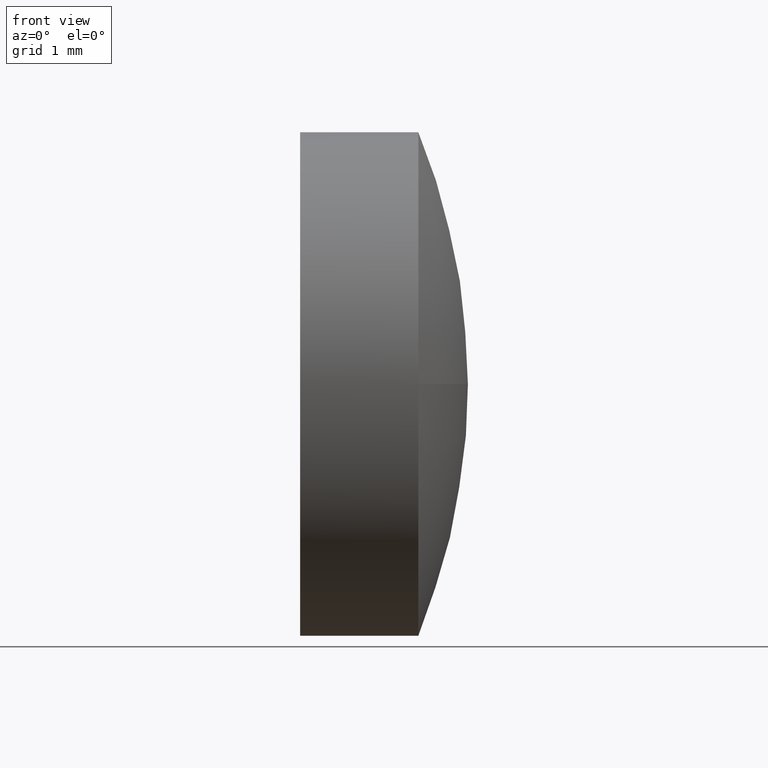
[diagram: clean part render]
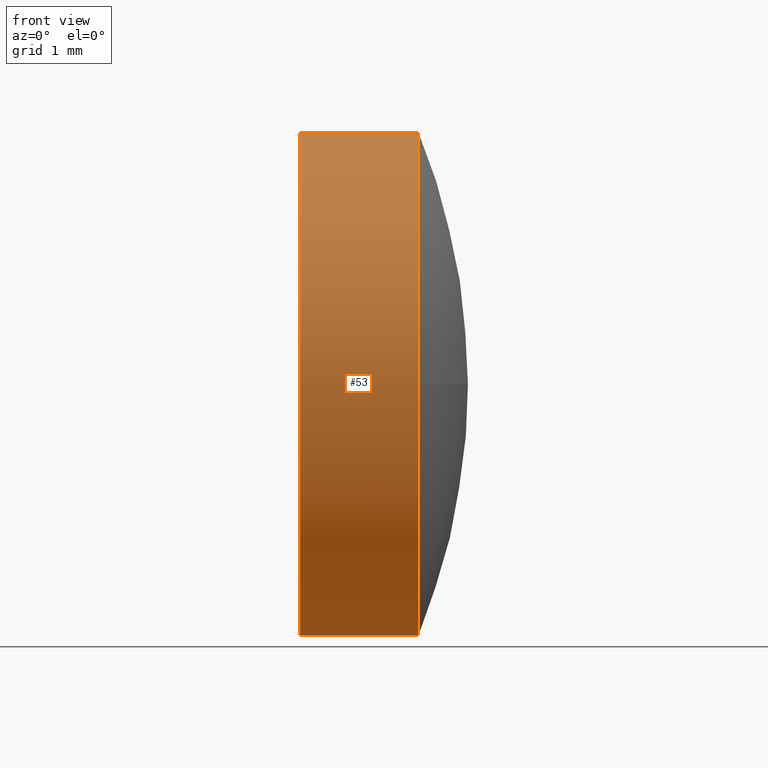
[diagram: same view with one face highlighted and labeled with its STEP entity id]
A machine part, front view. The second image highlights one B-rep face of the part: STEP entity #53.
In plain terms, the highlighted cylindrical surface (partial cylindrical patch) has radius 3.15 mm, axis along (-1, -0, -0).
Its self-contained STEP definition (entity closure, byte-faithful):
#1 = VECTOR ( 'NONE', #74, 1000.000000000000000 ) ;
#4 = CARTESIAN_POINT ( 'NONE',  ( 444.5033712523841700, -98.43972951502320300, 3.150000000000013700 ) ) ;
#16 = VECTOR ( 'NONE', #158, 1000.000000000000000 ) ;
#17 = CARTESIAN_POINT ( 'NONE',  ( 443.0233712523840900, -98.43972951502320300, 0.0000000000000000000 ) ) ;
#21 = CARTESIAN_POINT ( 'NONE',  ( 442.2176608398421500, -98.43972951502320300, 3.150000000000013700 ) ) ;
#24 = CIRCLE ( 'NONE', #41, 3.150000000000013700 ) ;
#27 = EDGE_CURVE ( 'NONE', #75, #38, #24, .T. ) ;
#29 = DIRECTION ( 'NONE',  ( -1.000000000000000000, -0.0000000000000000000, -0.0000000000000000000 ) ) ;
#30 = EDGE_CURVE ( 'NONE', #136, #114, #42, .T. ) ;
#35 = EDGE_LOOP ( 'NONE', ( #145, #117, #111, #157, #72 ) ) ;
#38 = VERTEX_POINT ( 'NONE', #83 ) ;
#40 = CARTESIAN_POINT ( 'NONE',  ( 442.2176608398421500, -98.43972951502320300, 0.0000000000000000000 ) ) ;
#41 = AXIS2_PLACEMENT_3D ( 'NONE', #17, #173, #186 ) ;
#42 = CIRCLE ( 'NONE', #115, 3.150000000000013700 ) ;
#43 = CARTESIAN_POINT ( 'NONE',  ( 443.0233712523840900, -98.43972951502320300, -3.150000000000013700 ) ) ;
#45 = CARTESIAN_POINT ( 'NONE',  ( 444.5033712523841700, -98.43972951502320300, 0.0000000000000000000 ) ) ;
#46 = CARTESIAN_POINT ( 'NONE',  ( 444.5033712523841700, -101.5897295150232700, -3.857637417314167600E-016 ) ) ;
#47 = CARTESIAN_POINT ( 'NONE',  ( 444.5033712523841700, -98.43972951502320300, -3.150000000000013700 ) ) ;
#50 = CIRCLE ( 'NONE', #80, 3.150000000000013700 ) ;
#53 = ADVANCED_FACE ( 'NONE', ( #56 ), #131, .T. ) ;
#56 = FACE_OUTER_BOUND ( 'NONE', #35, .T. ) ;
#59 = DIRECTION ( 'NONE',  ( 0.0000000000000000000, 0.0000000000000000000, 1.000000000000000000 ) ) ;
#64 = LINE ( 'NONE', #21, #16 ) ;
#70 = EDGE_CURVE ( 'NONE', #109, #136, #50, .T. ) ;
#72 = ORIENTED_EDGE ( 'NONE', *, *, #27, .F. ) ;
#74 = DIRECTION ( 'NONE',  ( -1.000000000000000000, -0.0000000000000000000, -0.0000000000000000000 ) ) ;
#75 = VERTEX_POINT ( 'NONE', #43 ) ;
#80 = AXIS2_PLACEMENT_3D ( 'NONE', #167, #94, #59 ) ;
#83 = CARTESIAN_POINT ( 'NONE',  ( 443.0233712523840900, -98.43972951502320300, 3.150000000000013700 ) ) ;
#94 = DIRECTION ( 'NONE',  ( -1.000000000000000000, -0.0000000000000000000, -0.0000000000000000000 ) ) ;
#95 = DIRECTION ( 'NONE',  ( -1.000000000000000000, -0.0000000000000000000, -0.0000000000000000000 ) ) ;
#101 = DIRECTION ( 'NONE',  ( 0.0000000000000000000, 0.0000000000000000000, 1.000000000000000000 ) ) ;
#109 = VERTEX_POINT ( 'NONE', #47 ) ;
#111 = ORIENTED_EDGE ( 'NONE', *, *, #30, .T. ) ;
#114 = VERTEX_POINT ( 'NONE', #4 ) ;
#115 = AXIS2_PLACEMENT_3D ( 'NONE', #45, #29, #101 ) ;
#117 = ORIENTED_EDGE ( 'NONE', *, *, #70, .T. ) ;
#125 = EDGE_CURVE ( 'NONE', #109, #75, #142, .T. ) ;
#127 = DIRECTION ( 'NONE',  ( 0.0000000000000000000, 0.0000000000000000000, 1.000000000000000000 ) ) ;
#131 = CYLINDRICAL_SURFACE ( 'NONE', #143, 3.150000000000013700 ) ;
#136 = VERTEX_POINT ( 'NONE', #46 ) ;
#142 = LINE ( 'NONE', #153, #1 ) ;
#143 = AXIS2_PLACEMENT_3D ( 'NONE', #40, #95, #127 ) ;
#145 = ORIENTED_EDGE ( 'NONE', *, *, #125, .F. ) ;
#153 = CARTESIAN_POINT ( 'NONE',  ( 442.2176608398421500, -98.43972951502320300, -3.150000000000013700 ) ) ;
#157 = ORIENTED_EDGE ( 'NONE', *, *, #169, .T. ) ;
#158 = DIRECTION ( 'NONE',  ( -1.000000000000000000, -0.0000000000000000000, -0.0000000000000000000 ) ) ;
#167 = CARTESIAN_POINT ( 'NONE',  ( 444.5033712523841700, -98.43972951502320300, 0.0000000000000000000 ) ) ;
#169 = EDGE_CURVE ( 'NONE', #114, #38, #64, .T. ) ;
#173 = DIRECTION ( 'NONE',  ( -1.000000000000000000, -0.0000000000000000000, -0.0000000000000000000 ) ) ;
#186 = DIRECTION ( 'NONE',  ( 0.0000000000000000000, 0.0000000000000000000, 1.000000000000000000 ) ) ;